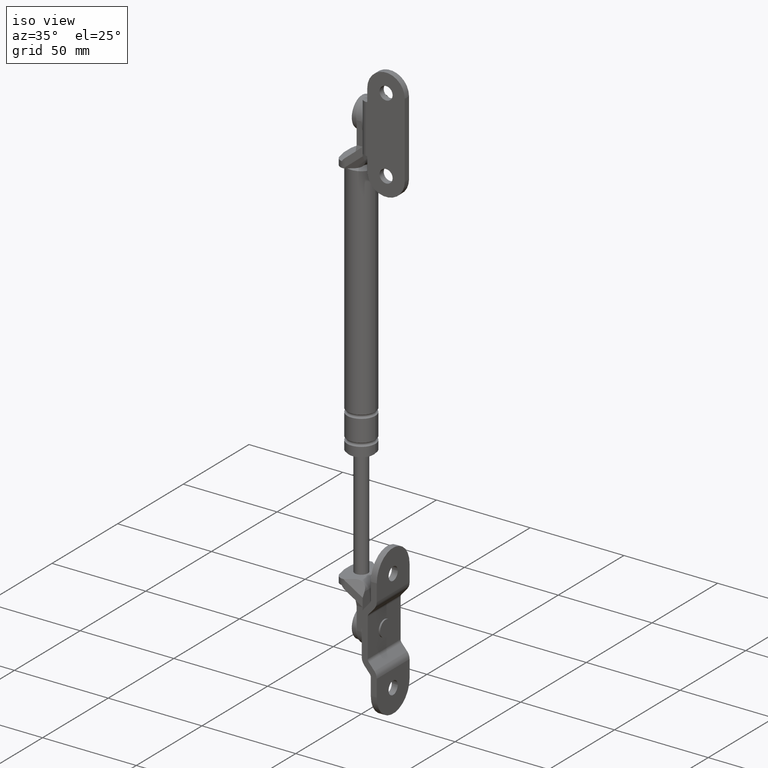
[diagram: clean part render]
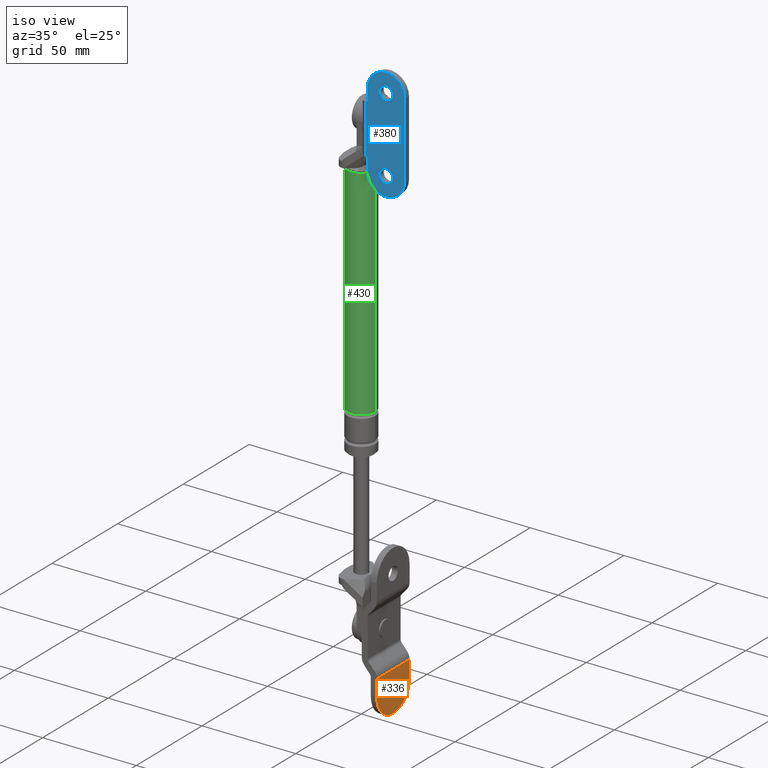
[diagram: same view with three faces highlighted in distinct colors, each labeled with its STEP entity id]
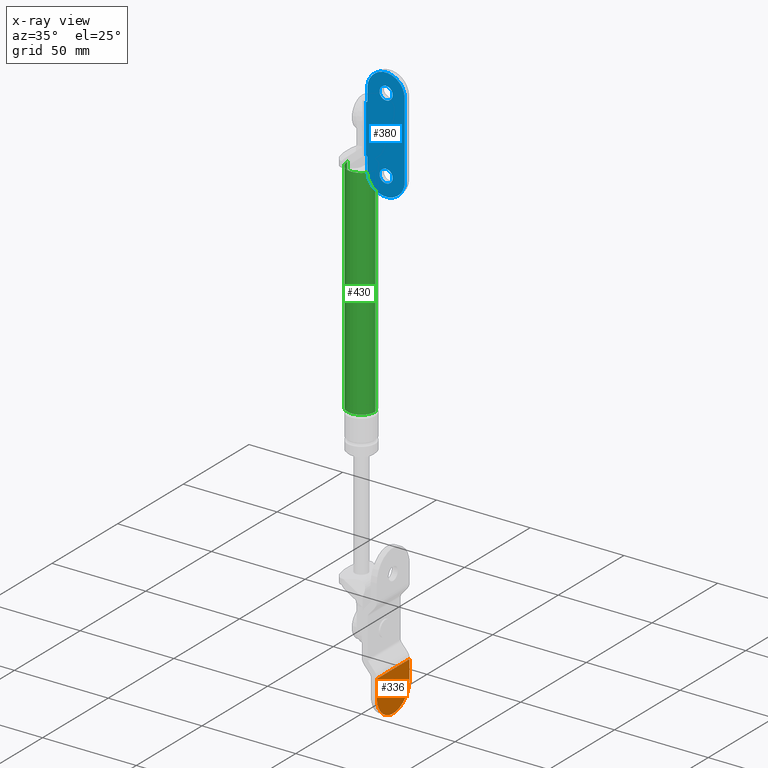
[diagram: x-ray of the same camera — body ghosted, the three highlighted faces saturated]
A machine part, iso view with three faces highlighted in distinct colors.
The next image is the same camera in x-ray (body ghosted, the three faces saturated) — at least one of them is partly hidden behind the body in this view.
Their STEP definitions:

[orange] entity #336 — the highlighted planar face has unit normal (-1, 0, 0).
#336=ADVANCED_FACE('',(#593,#594),#592,.F.);
#592=PLANE('',#1998);
#593=FACE_OUTER_BOUND('',#1999,.T.);
#594=FACE_BOUND('',#2000,.T.);
#1995=CARTESIAN_POINT('',(1.11590039666E+002,-4.80000000000E+000,1.47258453631E+002));
#1996=DIRECTION('',(0.00000000000E+000,1.00000000000E+000,0.00000000000E+000));
#1997=DIRECTION('',(0.00000000000E+000,0.00000000000E+000,1.00000000000E+000));
#1998=AXIS2_PLACEMENT_3D('',#1995,#1996,#1997);
#1999=EDGE_LOOP('',(#3032,#3033,#3034,#3035));
#2000=EDGE_LOOP('',(#3036,#3037));
#3032=ORIENTED_EDGE('',*,*,#3718,.T.);
#3033=ORIENTED_EDGE('',*,*,#3719,.T.);
#3034=ORIENTED_EDGE('',*,*,#3720,.F.);
#3035=ORIENTED_EDGE('',*,*,#3721,.T.);
#3036=ORIENTED_EDGE('',*,*,#3722,.F.);
#3037=ORIENTED_EDGE('',*,*,#3723,.F.);
#3718=EDGE_CURVE('',#4209,#4210,#4211,.T.);
#3719=EDGE_CURVE('',#4210,#4217,#4218,.T.);
#3720=EDGE_CURVE('',#4224,#4217,#4225,.T.);
#3721=EDGE_CURVE('',#4224,#4209,#4231,.T.);
#3722=EDGE_CURVE('',#4237,#4238,#4239,.T.);
#3723=EDGE_CURVE('',#4238,#4237,#4245,.T.);
#4209=VERTEX_POINT('',#6503);
#4210=VERTEX_POINT('',#6504);
#4211=LINE('',#6505,#6506);
#4217=VERTEX_POINT('',#6508);
#4218=CIRCLE('',#6512,1.25000000000E+001);
#4224=VERTEX_POINT('',#6513);
#4225=LINE('',#6514,#6515);
#4231=LINE('',#6517,#6518);
#4237=VERTEX_POINT('',#6520);
#4238=VERTEX_POINT('',#6521);
#4239=CIRCLE('',#6525,3.50000000000E+000);
#4245=CIRCLE('',#6529,3.50000000000E+000);
#6503=CARTESIAN_POINT('',(1.13740788278E+002,-4.80000000000E+000,1.49758453631E+002));
#6504=CARTESIAN_POINT('',(1.22748274395E+002,-4.80000000000E+000,1.49758453631E+002));
#6505=CARTESIAN_POINT('',(1.13740788278E+002,-4.80000000000E+000,1.49758453631E+002));
#6506=VECTOR('',#6507,9.00748611743E+000);
#6507=DIRECTION('',(1.00000000000E+000,0.00000000000E+000,0.00000000000E+000));
#6508=CARTESIAN_POINT('',(1.22748274395E+002,-4.80000000000E+000,1.74758453631E+002));
#6509=CARTESIAN_POINT('',(1.22748274395E+002,-4.80000000000E+000,1.62258453631E+002));
#6510=DIRECTION('',(0.00000000000E+000,-1.00000000000E+000,0.00000000000E+000));
#6511=DIRECTION('',(-0.00000000000E+000,-0.00000000000E+000,-1.00000000000E+000));
#6512=AXIS2_PLACEMENT_3D('',#6509,#6510,#6511);
#6513=CARTESIAN_POINT('',(1.13740788278E+002,-4.80000000000E+000,1.74758453631E+002));
#6514=CARTESIAN_POINT('',(1.13740788278E+002,-4.80000000000E+000,1.74758453631E+002));
#6515=VECTOR('',#6516,9.00748611743E+000);
#6516=DIRECTION('',(1.00000000000E+000,0.00000000000E+000,0.00000000000E+000));
#6517=CARTESIAN_POINT('',(1.13740788278E+002,-4.80000000000E+000,1.74758453631E+002));
#6518=VECTOR('',#6519,2.50000000000E+001);
#6519=DIRECTION('',(0.00000000000E+000,0.00000000000E+000,-1.00000000000E+000));
#6520=CARTESIAN_POINT('',(1.22748274395E+002,-4.80000000000E+000,1.58758453631E+002));
#6521=CARTESIAN_POINT('',(1.22748274395E+002,-4.80000000000E+000,1.65758453631E+002));
#6522=CARTESIAN_POINT('',(1.22748274395E+002,-4.80000000000E+000,1.62258453631E+002));
#6523=DIRECTION('',(-0.00000000000E+000,-1.00000000000E+000,0.00000000000E+000));
#6524=DIRECTION('',(-1.22460635382E-016,0.00000000000E+000,1.00000000000E+000));
#6525=AXIS2_PLACEMENT_3D('',#6522,#6523,#6524);
#6526=CARTESIAN_POINT('',(1.22748274395E+002,-4.80000000000E+000,1.62258453631E+002));
#6527=DIRECTION('',(-0.00000000000E+000,-1.00000000000E+000,0.00000000000E+000));
#6528=DIRECTION('',(-1.22460635382E-016,0.00000000000E+000,1.00000000000E+000));
#6529=AXIS2_PLACEMENT_3D('',#6526,#6527,#6528);

[blue] entity #380 — the highlighted planar face has unit normal (0, -1, 0).
#380=ADVANCED_FACE('',(#1040,#1041,#1042),#1039,.T.);
#1039=PLANE('',#2309);
#1040=FACE_OUTER_BOUND('',#2310,.T.);
#1041=FACE_BOUND('',#2311,.T.);
#1042=FACE_BOUND('',#2312,.T.);
#2306=CARTESIAN_POINT('',(6.63047447386E+001,-2.28800000000E+001,1.90587479342E+002));
#2307=DIRECTION('',(0.00000000000E+000,0.00000000000E+000,1.00000000000E+000));
#2308=DIRECTION('',(1.00000000000E+000,0.00000000000E+000,0.00000000000E+000));
#2309=AXIS2_PLACEMENT_3D('',#2306,#2307,#2308);
#2310=EDGE_LOOP('',(#3248,#3249,#3250,#3251,#3252,#3253,#3254,#3255,#3256,#3257));
#2311=EDGE_LOOP('',(#3258,#3259));
#2312=EDGE_LOOP('',(#3260,#3261));
#3248=ORIENTED_EDGE('',*,*,#3833,.F.);
#3249=ORIENTED_EDGE('',*,*,#3834,.T.);
#3250=ORIENTED_EDGE('',*,*,#3835,.F.);
#3251=ORIENTED_EDGE('',*,*,#3836,.T.);
#3252=ORIENTED_EDGE('',*,*,#3831,.F.);
#3253=ORIENTED_EDGE('',*,*,#3828,.F.);
#3254=ORIENTED_EDGE('',*,*,#3837,.F.);
#3255=ORIENTED_EDGE('',*,*,#3838,.F.);
#3256=ORIENTED_EDGE('',*,*,#3839,.F.);
#3257=ORIENTED_EDGE('',*,*,#3840,.T.);
#3258=ORIENTED_EDGE('',*,*,#3841,.T.);
#3259=ORIENTED_EDGE('',*,*,#3842,.T.);
#3260=ORIENTED_EDGE('',*,*,#3843,.T.);
#3261=ORIENTED_EDGE('',*,*,#3844,.T.);
#3828=EDGE_CURVE('',#4937,#4944,#4945,.T.);
#3831=EDGE_CURVE('',#4944,#4964,#4965,.T.);
#3833=EDGE_CURVE('',#4977,#4978,#4979,.T.);
#3834=EDGE_CURVE('',#4977,#4985,#4986,.T.);
#3835=EDGE_CURVE('',#4992,#4985,#4993,.T.);
#3836=EDGE_CURVE('',#4992,#4964,#4999,.T.);
#3837=EDGE_CURVE('',#5005,#4937,#5006,.T.);
#3838=EDGE_CURVE('',#5012,#5005,#5013,.T.);
#3839=EDGE_CURVE('',#5019,#5012,#5020,.T.);
#3840=EDGE_CURVE('',#5019,#4978,#5026,.T.);
#3841=EDGE_CURVE('',#5032,#5033,#5034,.T.);
#3842=EDGE_CURVE('',#5033,#5032,#5040,.T.);
#3843=EDGE_CURVE('',#5046,#5047,#5048,.T.);
#3844=EDGE_CURVE('',#5047,#5046,#5054,.T.);
#4937=VERTEX_POINT('',#6943);
#4944=VERTEX_POINT('',#6947);
#4945=CIRCLE('',#6951,1.00000000000E+001);
#4964=VERTEX_POINT('',#6959);
#4965=LINE('',#6960,#6961);
#4977=VERTEX_POINT('',#6966);
#4978=VERTEX_POINT('',#6967);
#4979=LINE('',#6968,#6969);
#4985=VERTEX_POINT('',#6971);
#4986=LINE('',#6972,#6973);
#4992=VERTEX_POINT('',#6975);
#4993=LINE('',#6976,#6977);
#4999=CIRCLE('',#6982,5.00000000000E-001);
#5005=VERTEX_POINT('',#6983);
#5006=LINE('',#6984,#6985);
#5012=VERTEX_POINT('',#6987);
#5013=CIRCLE('',#6991,1.00000000000E+001);
#5019=VERTEX_POINT('',#6992);
#5020=LINE('',#6993,#6994);
#5026=CIRCLE('',#6999,5.00000000000E-001);
#5032=VERTEX_POINT('',#7000);
#5033=VERTEX_POINT('',#7001);
#5034=CIRCLE('',#7005,3.50000000000E+000);
#5040=CIRCLE('',#7009,3.50000000000E+000);
#5046=VERTEX_POINT('',#7010);
#5047=VERTEX_POINT('',#7011);
#5048=CIRCLE('',#7015,3.50000000000E+000);
#5054=CIRCLE('',#7019,3.50000000000E+000);
#6943=CARTESIAN_POINT('',(8.23047447386E+001,-2.08000000000E+001,1.90587479342E+002));
#6947=CARTESIAN_POINT('',(8.23047447386E+001,-8.00000000000E-001,1.90587479342E+002));
#6948=CARTESIAN_POINT('',(8.23047447386E+001,-1.08000000000E+001,1.90587479342E+002));
#6949=DIRECTION('',(0.00000000000E+000,0.00000000000E+000,-1.00000000000E+000));
#6950=DIRECTION('',(1.83690953073E-016,1.00000000000E+000,0.00000000000E+000));
#6951=AXIS2_PLACEMENT_3D('',#6948,#6949,#6950);
#6959=CARTESIAN_POINT('',(8.88047447386E+001,-8.00000000000E-001,1.90587479342E+002));
#6960=CARTESIAN_POINT('',(8.23047447386E+001,-8.00000000000E-001,1.90587479342E+002));
#6961=VECTOR('',#6962,6.50000000000E+000);
#6962=DIRECTION('',(1.00000000000E+000,0.00000000000E+000,0.00000000000E+000));
#6966=CARTESIAN_POINT('',(1.15304744739E+002,-2.53269627493E-013,1.90587479342E+002));
#6967=CARTESIAN_POINT('',(1.15304744739E+002,-3.00000000000E-001,1.90587479342E+002));
#6968=CARTESIAN_POINT('',(1.15304744739E+002,-2.53269627493E-013,1.90587479342E+002));
#6969=VECTOR('',#6970,3.00000000000E-001);
#6970=DIRECTION('',(0.00000000000E+000,-1.00000000000E+000,0.00000000000E+000));
#6971=CARTESIAN_POINT('',(8.93047447386E+001,-2.53269627493E-013,1.90587479342E+002));
#6972=CARTESIAN_POINT('',(1.15304744739E+002,-2.53269627493E-013,1.90587479342E+002));
#6973=VECTOR('',#6974,2.60000000000E+001);
#6974=DIRECTION('',(-1.00000000000E+000,0.00000000000E+000,0.00000000000E+000));
#6975=CARTESIAN_POINT('',(8.93047447386E+001,-3.00000000000E-001,1.90587479342E+002));
#6976=CARTESIAN_POINT('',(8.93047447386E+001,-3.00000000000E-001,1.90587479342E+002));
#6977=VECTOR('',#6978,3.00000000000E-001);
#6978=DIRECTION('',(0.00000000000E+000,1.00000000000E+000,0.00000000000E+000));
#6979=CARTESIAN_POINT('',(8.88047447386E+001,-3.00000000000E-001,1.90587479342E+002));
#6980=DIRECTION('',(0.00000000000E+000,0.00000000000E+000,-1.00000000000E+000));
#6981=DIRECTION('',(-1.00000000000E+000,-0.00000000000E+000,-0.00000000000E+000));
#6982=AXIS2_PLACEMENT_3D('',#6979,#6980,#6981);
#6983=CARTESIAN_POINT('',(1.22304744739E+002,-2.08000000000E+001,1.90587479342E+002));
#6984=CARTESIAN_POINT('',(1.22304744739E+002,-2.08000000000E+001,1.90587479342E+002));
#6985=VECTOR('',#6986,4.00000000000E+001);
#6986=DIRECTION('',(-1.00000000000E+000,2.22044604925E-015,0.00000000000E+000));
#6987=CARTESIAN_POINT('',(1.22304744739E+002,-8.00000000000E-001,1.90587479342E+002));
#6988=CARTESIAN_POINT('',(1.22304744739E+002,-1.08000000000E+001,1.90587479342E+002));
#6989=DIRECTION('',(0.00000000000E+000,0.00000000000E+000,-1.00000000000E+000));
#6990=DIRECTION('',(-1.00000000000E+000,-0.00000000000E+000,-0.00000000000E+000));
#6991=AXIS2_PLACEMENT_3D('',#6988,#6989,#6990);
#6992=CARTESIAN_POINT('',(1.15804744739E+002,-8.00000000000E-001,1.90587479342E+002));
#6993=CARTESIAN_POINT('',(1.15804744739E+002,-8.00000000000E-001,1.90587479342E+002));
#6994=VECTOR('',#6995,6.50000000000E+000);
#6995=DIRECTION('',(1.00000000000E+000,0.00000000000E+000,0.00000000000E+000));
#6996=CARTESIAN_POINT('',(1.15804744739E+002,-3.00000000000E-001,1.90587479342E+002));
#6997=DIRECTION('',(0.00000000000E+000,0.00000000000E+000,-1.00000000000E+000));
#6998=DIRECTION('',(-1.00000000000E+000,-0.00000000000E+000,-0.00000000000E+000));
#6999=AXIS2_PLACEMENT_3D('',#6996,#6997,#6998);
#7000=CARTESIAN_POINT('',(8.58047447386E+001,-1.08000000000E+001,1.90587479342E+002));
#7001=CARTESIAN_POINT('',(7.88047447386E+001,-1.08000000000E+001,1.90587479342E+002));
#7002=CARTESIAN_POINT('',(8.23047447386E+001,-1.08000000000E+001,1.90587479342E+002));
#7003=DIRECTION('',(0.00000000000E+000,-0.00000000000E+000,-1.00000000000E+000));
#7004=DIRECTION('',(1.00000000000E+000,-1.22460635382E-016,0.00000000000E+000));
#7005=AXIS2_PLACEMENT_3D('',#7002,#7003,#7004);
#7006=CARTESIAN_POINT('',(8.23047447386E+001,-1.08000000000E+001,1.90587479342E+002));
#7007=DIRECTION('',(0.00000000000E+000,-0.00000000000E+000,-1.00000000000E+000));
#7008=DIRECTION('',(1.00000000000E+000,-1.22460635382E-016,0.00000000000E+000));
#7009=AXIS2_PLACEMENT_3D('',#7006,#7007,#7008);
#7010=CARTESIAN_POINT('',(1.25804744739E+002,-1.08000000000E+001,1.90587479342E+002));
#7011=CARTESIAN_POINT('',(1.18804744739E+002,-1.08000000000E+001,1.90587479342E+002));
#7012=CARTESIAN_POINT('',(1.22304744739E+002,-1.08000000000E+001,1.90587479342E+002));
#7013=DIRECTION('',(0.00000000000E+000,-0.00000000000E+000,-1.00000000000E+000));
#7014=DIRECTION('',(1.00000000000E+000,-1.22460635382E-016,0.00000000000E+000));
#7015=AXIS2_PLACEMENT_3D('',#7012,#7013,#7014);
#7016=CARTESIAN_POINT('',(1.22304744739E+002,-1.08000000000E+001,1.90587479342E+002));
#7017=DIRECTION('',(0.00000000000E+000,-0.00000000000E+000,-1.00000000000E+000));
#7018=DIRECTION('',(1.00000000000E+000,-1.22460635382E-016,0.00000000000E+000));
#7019=AXIS2_PLACEMENT_3D('',#7016,#7017,#7018);

[green] entity #430 — the highlighted cylindrical surface (edge-blend (fillet) strip) has radius 7.5 mm, axis along (0, 0, 1).
#430=ADVANCED_FACE('',(#1550),#1549,.T.);
#1549=CYLINDRICAL_SURFACE('',#2691,7.50000002618E+000);
#1550=FACE_OUTER_BOUND('',#2692,.T.);
#2688=CARTESIAN_POINT('',(0.00000000000E+000,0.00000000000E+000,0.00000000000E+000));
#2689=DIRECTION('',(-0.00000000000E+000,-0.00000000000E+000,1.00000000000E+000));
#2690=DIRECTION('',(1.00000000000E+000,0.00000000000E+000,0.00000000000E+000));
#2691=AXIS2_PLACEMENT_3D('',#2688,#2689,#2690);
#2692=EDGE_LOOP('',(#3506,#3507,#3508,#3509));
#3506=ORIENTED_EDGE('',*,*,#3965,.F.);
#3507=ORIENTED_EDGE('',*,*,#3962,.T.);
#3508=ORIENTED_EDGE('',*,*,#3915,.F.);
#3509=ORIENTED_EDGE('',*,*,#3964,.F.);
#3915=EDGE_CURVE('',#5529,#5530,#5531,.T.);
#3962=EDGE_CURVE('',#5835,#5530,#5836,.T.);
#3964=EDGE_CURVE('',#5842,#5529,#5849,.T.);
#3965=EDGE_CURVE('',#5835,#5842,#5855,.T.);
#5529=VERTEX_POINT('',#7319);
#5530=VERTEX_POINT('',#7320);
#5531=CIRCLE('',#7324,7.50000002618E+000);
#5835=VERTEX_POINT('',#7501);
#5836=(BOUNDED_CURVE() B_SPLINE_CURVE(1,(#7502,#7503),.UNSPECIFIED.,.F.,.F.) B_SPLINE_CURVE_WITH_KNOTS((2,2),(7.32600813727E-002,9.26739918579E-001),.UNSPECIFIED.) CURVE() GEOMETRIC_REPRESENTATION_ITEM() RATIONAL_B_SPLINE_CURVE((1.00000000000E+000,1.00000000000E+000)) REPRESENTATION_ITEM('') );
#5842=VERTEX_POINT('',#7504);
#5849=(BOUNDED_CURVE() B_SPLINE_CURVE(1,(#7509,#7510),.UNSPECIFIED.,.F.,.F.) B_SPLINE_CURVE_WITH_KNOTS((2,2),(7.32600813106E-002,9.26739918689E-001),.UNSPECIFIED.) CURVE() GEOMETRIC_REPRESENTATION_ITEM() RATIONAL_B_SPLINE_CURVE((7.50000000000E-001,7.50000000000E-001)) REPRESENTATION_ITEM('') );
#5855=CIRCLE('',#7514,7.50000005236E+000);
#7319=CARTESIAN_POINT('',(-7.50000002618E+000,0.00000000000E+000,8.64999850000E+001));
#7320=CARTESIAN_POINT('',(7.50000002618E+000,1.48029736617E-015,8.64999850000E+001));
#7321=CARTESIAN_POINT('',(0.00000000000E+000,0.00000000000E+000,8.64999850000E+001));
#7322=DIRECTION('',(0.00000000000E+000,0.00000000000E+000,1.00000000000E+000));
#7323=DIRECTION('',(-1.00000000000E+000,-1.22460635382E-016,0.00000000000E+000));
#7324=AXIS2_PLACEMENT_3D('',#7321,#7322,#7323);
#7501=CARTESIAN_POINT('',(7.50000005236E+000,8.88178419700E-016,-3.00000000000E+001));
#7502=CARTESIAN_POINT('',(7.50000002618E+000,0.00000000000E+000,-2.99999999915E+001));
#7503=CARTESIAN_POINT('',(7.50000002618E+000,0.00000000000E+000,8.64999849849E+001));
#7504=CARTESIAN_POINT('',(-7.50000005236E+000,0.00000000000E+000,-3.00000000000E+001));
#7509=CARTESIAN_POINT('',(-7.50000002618E+000,0.00000000000E+000,-3.00000000000E+001));
#7510=CARTESIAN_POINT('',(-7.50000002618E+000,0.00000000000E+000,8.64999850000E+001));
#7511=CARTESIAN_POINT('',(0.00000000000E+000,0.00000000000E+000,-3.00000000000E+001));
#7512=DIRECTION('',(-0.00000000000E+000,0.00000000000E+000,-1.00000000000E+000));
#7513=DIRECTION('',(-1.00000000000E+000,-1.22460635382E-016,0.00000000000E+000));
#7514=AXIS2_PLACEMENT_3D('',#7511,#7512,#7513);